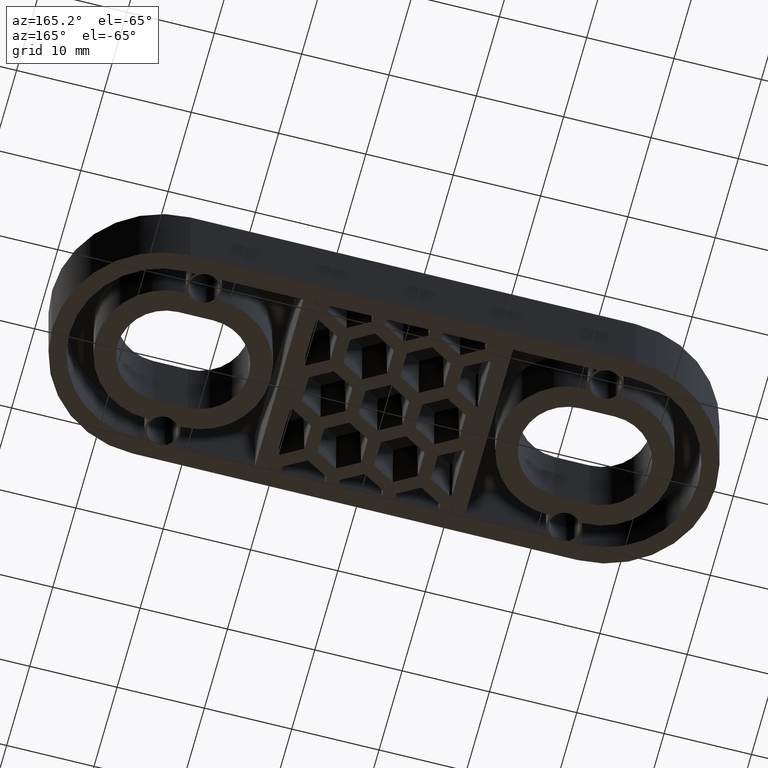
[diagram: clean part render]
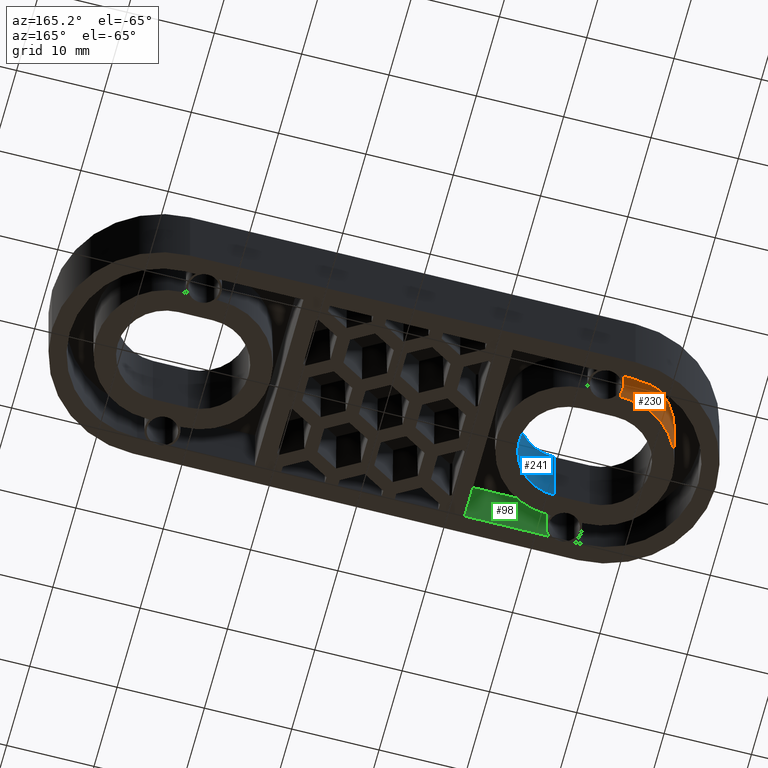
[diagram: same view with three faces highlighted in distinct colors, each labeled with its STEP entity id]
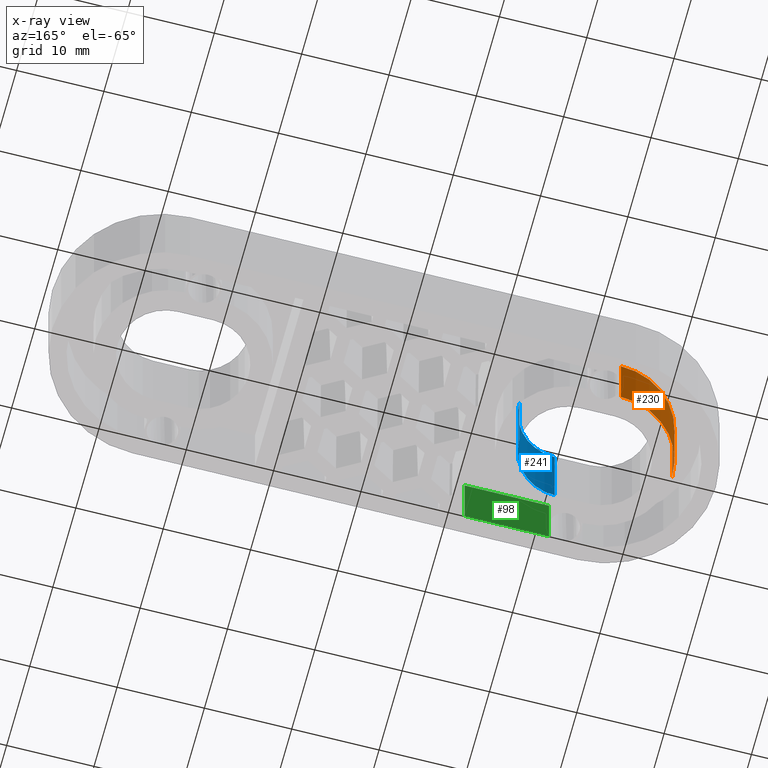
[diagram: x-ray of the same camera — body ghosted, the three highlighted faces saturated]
A machine part, auxiliary view with three faces highlighted in distinct colors.
The next image is the same camera in x-ray (body ghosted, the three faces saturated) — at least one of them is partly hidden behind the body in this view.
Their STEP definitions:

[orange] entity #230 — the highlighted cylindrical surface (partial cylindrical patch) has radius 8 mm, axis along (0, -0, -1).
#230 = ADVANCED_FACE( '', ( #644 ), #645, .T. );
#644 = FACE_OUTER_BOUND( '', #1126, .T. );
#645 = CYLINDRICAL_SURFACE( '', #1127, 7.99999999999999 );
#1126 = EDGE_LOOP( '', ( #2581, #2582, #2583, #2584 ) );
#1127 = AXIS2_PLACEMENT_3D( '', #2585, #2586, #2587 );
#2581 = ORIENTED_EDGE( '', *, *, #3129, .F. );
#2582 = ORIENTED_EDGE( '', *, *, #3157, .F. );
#2583 = ORIENTED_EDGE( '', *, *, #3190, .F. );
#2584 = ORIENTED_EDGE( '', *, *, #3509, .T. );
#2585 = CARTESIAN_POINT( '', ( -25.0000000000000, 6.93889390390723E-015, -4.24870678161208E-031 ) );
#2586 = DIRECTION( '', ( 1.36845553156721E-048, -6.12303176911189E-017, -1.00000000000000 ) );
#2587 = DIRECTION( '', ( 1.22460635382238E-016, -1.00000000000000, 6.12303176911189E-017 ) );
#3129 = EDGE_CURVE( '', #3772, #3774, #3775, .F. );
#3157 = EDGE_CURVE( '', #3824, #3772, #3826, .T. );
#3190 = EDGE_CURVE( '', #3874, #3824, #3876, .T. );
#3509 = EDGE_CURVE( '', #3874, #3774, #4406, .T. );
#3772 = VERTEX_POINT( '', #4771 );
#3774 = VERTEX_POINT( '', #4774 );
#3775 = CIRCLE( '', #4775, 8.00000000000000 );
#3824 = VERTEX_POINT( '', #4842 );
#3826 = LINE( '', #4845, #4846 );
#3874 = VERTEX_POINT( '', #4907 );
#3876 = CIRCLE( '', #4909, 7.99999999999999 );
#4406 = LINE( '', #5740, #5741 );
#4771 = CARTESIAN_POINT( '', ( -25.0000000000000, 8.00000000000000, 7.99999999999998 ) );
#4774 = CARTESIAN_POINT( '', ( -33.0000000000000, 5.69401296945937E-015, 7.99999999999997 ) );
#4775 = AXIS2_PLACEMENT_3D( '', #6059, #6060, #6061 );
#4842 = CARTESIAN_POINT( '', ( -25.0000000000000, 8.00000000000000, -4.89842541528951E-016 ) );
#4845 = CARTESIAN_POINT( '', ( -25.0000000000000, 8.00000000000000, -4.89842541528951E-016 ) );
#4846 = VECTOR( '', #6105, 1000.00000000000 );
#4907 = CARTESIAN_POINT( '', ( -33.0000000000000, 5.20417042793042E-015, -3.18653008620906E-031 ) );
#4909 = AXIS2_PLACEMENT_3D( '', #6176, #6177, #6178 );
#5740 = CARTESIAN_POINT( '', ( -33.0000000000000, 5.20417042793042E-015, -3.18653008620906E-031 ) );
#5741 = VECTOR( '', #6531, 1000.00000000000 );
#6059 = CARTESIAN_POINT( '', ( -25.0000000000000, 7.42873644543618E-015, 7.99999999999998 ) );
#6060 = DIRECTION( '', ( 6.60847038467355E-016, -6.12303176911189E-017, -1.00000000000000 ) );
#6061 = DIRECTION( '', ( 1.00000000000000, 4.04638741105912E-032, 6.60847038467355E-016 ) );
#6105 = DIRECTION( '', ( 0.000000000000000, 6.12303176911189E-017, 1.00000000000000 ) );
#6176 = CARTESIAN_POINT( '', ( -25.0000000000000, 6.93889390390723E-015, -4.24870678161208E-031 ) );
#6177 = DIRECTION( '', ( 1.36845553156721E-048, -6.12303176911189E-017, -1.00000000000000 ) );
#6178 = DIRECTION( '', ( 1.22460635382238E-016, -1.00000000000000, 6.12303176911189E-017 ) );
#6531 = DIRECTION( '', ( 0.000000000000000, 6.12303176911189E-017, 1.00000000000000 ) );

[blue] entity #241 — the highlighted cylindrical surface (partial cylindrical patch) has radius 5.5 mm, axis along (0, 0, 1).
#241 = ADVANCED_FACE( '', ( #666 ), #667, .F. );
#666 = FACE_OUTER_BOUND( '', #1148, .T. );
#667 = CYLINDRICAL_SURFACE( '', #1149, 5.50000000000000 );
#1148 = EDGE_LOOP( '', ( #2658, #2659, #2660, #2661 ) );
#1149 = AXIS2_PLACEMENT_3D( '', #2662, #2663, #2664 );
#2658 = ORIENTED_EDGE( '', *, *, #3516, .T. );
#2659 = ORIENTED_EDGE( '', *, *, #3300, .T. );
#2660 = ORIENTED_EDGE( '', *, *, #3517, .F. );
#2661 = ORIENTED_EDGE( '', *, *, #3047, .F. );
#2662 = CARTESIAN_POINT( '', ( -21.0000000000000, -1.12241968675843E-015, 10.0000100000655 ) );
#2663 = DIRECTION( '', ( 0.000000000000000, 6.12303176911189E-017, 1.00000000000000 ) );
#2664 = DIRECTION( '', ( 0.000000000000000, 1.00000000000000, -6.12303176911189E-017 ) );
#3047 = EDGE_CURVE( '', #3621, #3623, #3624, .T. );
#3300 = EDGE_CURVE( '', #4091, #4089, #4092, .T. );
#3516 = EDGE_CURVE( '', #3621, #4091, #4413, .T. );
#3517 = EDGE_CURVE( '', #3623, #4089, #4414, .T. );
#3621 = VERTEX_POINT( '', #4559 );
#3623 = VERTEX_POINT( '', #4561 );
#3624 = CIRCLE( '', #4562, 5.50000000000000 );
#4089 = VERTEX_POINT( '', #5221 );
#4091 = VERTEX_POINT( '', #5224 );
#4092 = CIRCLE( '', #5225, 5.50000000000000 );
#4413 = LINE( '', #5754, #5755 );
#4414 = LINE( '', #5756, #5757 );
#4559 = CARTESIAN_POINT( '', ( -15.5000000000000, -1.99834045795308E-015, 9.99999999999999 ) );
#4561 = CARTESIAN_POINT( '', ( -21.0000000000000, -5.50000000000000, 9.99999999999999 ) );
#4562 = AXIS2_PLACEMENT_3D( '', #5937, #5938, #5939 );
#5221 = CARTESIAN_POINT( '', ( -21.0000000000000, -5.50000000000000, -9.99994816086221E-006 ) );
#5224 = CARTESIAN_POINT( '', ( -15.5000000000000, -2.60208582626521E-015, -9.99994816119898E-006 ) );
#5225 = AXIS2_PLACEMENT_3D( '', #6306, #6307, #6308 );
#5754 = CARTESIAN_POINT( '', ( -15.5000000000000, -1.98978142474683E-015, 10.0000100000655 ) );
#5755 = VECTOR( '', #6538, 1000.00000000000 );
#5756 = CARTESIAN_POINT( '', ( -21.0000000000000, -5.50000000000000, 10.0000100000655 ) );
#5757 = VECTOR( '', #6539, 1000.00000000000 );
#5937 = CARTESIAN_POINT( '', ( -21.0000000000000, -1.12242029906562E-015, 9.99999999999999 ) );
#5938 = DIRECTION( '', ( 0.000000000000000, -6.12303176911189E-017, -1.00000000000000 ) );
#5939 = DIRECTION( '', ( 0.000000000000000, 1.00000000000000, -6.12303176911189E-017 ) );
#6306 = CARTESIAN_POINT( '', ( -21.0000000000000, -1.73472408827681E-015, -9.99994816119898E-006 ) );
#6307 = DIRECTION( '', ( 0.000000000000000, -6.12303176911189E-017, -1.00000000000000 ) );
#6308 = DIRECTION( '', ( 0.000000000000000, -1.00000000000000, 6.12303176911189E-017 ) );
#6538 = DIRECTION( '', ( 0.000000000000000, -6.12303176911189E-017, -1.00000000000000 ) );
#6539 = DIRECTION( '', ( 0.000000000000000, -6.12303176911189E-017, -1.00000000000000 ) );

[green] entity #98 — the highlighted planar face has unit normal (0, 1, -0).
#98 = ADVANCED_FACE( '', ( #351 ), #352, .T. );
#351 = FACE_OUTER_BOUND( '', #833, .T. );
#352 = PLANE( '', #834 );
#833 = EDGE_LOOP( '', ( #1487, #1488, #1489, #1490 ) );
#834 = AXIS2_PLACEMENT_3D( '', #1491, #1492, #1493 );
#1487 = ORIENTED_EDGE( '', *, *, #3161, .F. );
#1488 = ORIENTED_EDGE( '', *, *, #3162, .T. );
#1489 = ORIENTED_EDGE( '', *, *, #3143, .F. );
#1490 = ORIENTED_EDGE( '', *, *, #3163, .F. );
#1491 = CARTESIAN_POINT( '', ( -11.9999999999999, -10.5000000000000, -7.99999999991631 ) );
#1492 = DIRECTION( '', ( 0.000000000000000, 1.00000000000000, -6.12303176911189E-017 ) );
#1493 = DIRECTION( '', ( 1.00000000000000, 0.000000000000000, 0.000000000000000 ) );
#3143 = EDGE_CURVE( '', #3799, #3801, #3802, .T. );
#3161 = EDGE_CURVE( '', #3832, #3833, #3834, .T. );
#3162 = EDGE_CURVE( '', #3832, #3801, #3835, .T. );
#3163 = EDGE_CURVE( '', #3833, #3799, #3836, .T. );
#3799 = VERTEX_POINT( '', #4806 );
#3801 = VERTEX_POINT( '', #4809 );
#3802 = LINE( '', #4810, #4811 );
#3832 = VERTEX_POINT( '', #4855 );
#3833 = VERTEX_POINT( '', #4856 );
#3834 = LINE( '', #4857, #4858 );
#3835 = LINE( '', #4859, #4860 );
#3836 = LINE( '', #4861, #4862 );
#4806 = CARTESIAN_POINT( '', ( -11.9999999999999, -10.5000000000000, 7.99999999999999 ) );
#4809 = CARTESIAN_POINT( '', ( -21.6771243444677, -10.5000000000000, 7.99999999999987 ) );
#4810 = CARTESIAN_POINT( '', ( -11.9999999999999, -10.5000000000000, 7.99999999999998 ) );
#4811 = VECTOR( '', #6085, 1000.00000000000 );
#4855 = CARTESIAN_POINT( '', ( -21.6771243444677, -10.5000000000000, -1.10379384126759E-013 ) );
#4856 = CARTESIAN_POINT( '', ( -11.9999999999999, -10.5000000000000, 6.42918335756749E-016 ) );
#4857 = CARTESIAN_POINT( '', ( 25.5000000000000, -10.5000000000000, 6.42918335756749E-016 ) );
#4858 = VECTOR( '', #6109, 1000.00000000000 );
#4859 = CARTESIAN_POINT( '', ( -21.6771243444677, -10.5000000000000, -1.10379384126759E-013 ) );
#4860 = VECTOR( '', #6110, 999.999999999999 );
#4861 = CARTESIAN_POINT( '', ( -11.9999999999999, -10.5000000000000, -7.99999999991630 ) );
#4862 = VECTOR( '', #6111, 1000.00000000000 );
#6085 = DIRECTION( '', ( -1.00000000000000, 0.000000000000000, 0.000000000000000 ) );
#6109 = DIRECTION( '', ( 1.00000000000000, 0.000000000000000, 0.000000000000000 ) );
#6110 = DIRECTION( '', ( 0.000000000000000, 6.12303176911189E-017, 1.00000000000000 ) );
#6111 = DIRECTION( '', ( 0.000000000000000, 6.12303176911189E-017, 1.00000000000000 ) );